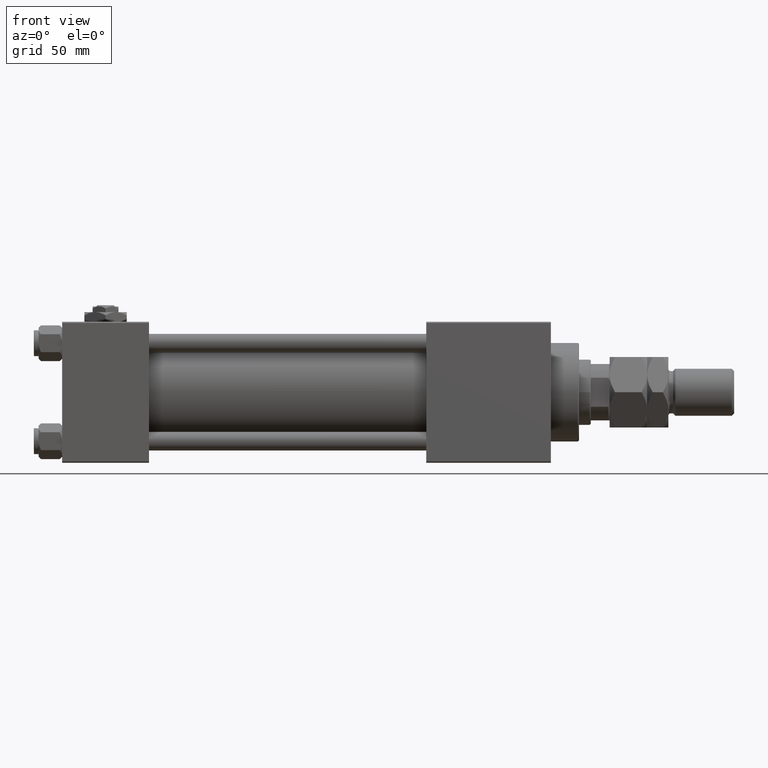
[diagram: clean part render]
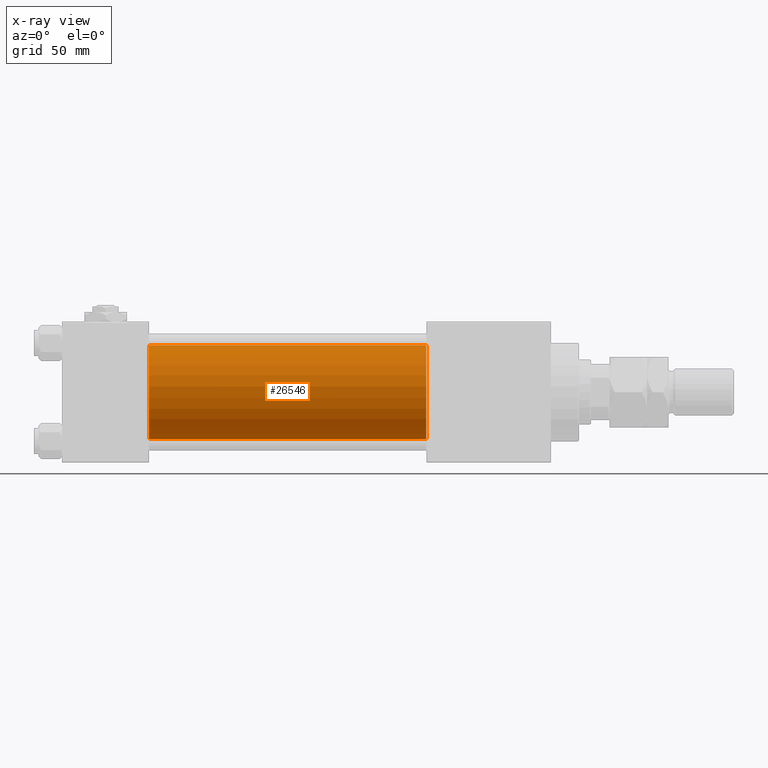
[diagram: x-ray — body ghosted, one internal face saturated and labeled with its STEP entity id]
A machine part, front view, then the same camera in x-ray: the body is ghosted and one INTERNAL B-rep face — a face not visible from any outside direction — is saturated and labeled: STEP entity #26546.
In plain terms, the highlighted cylindrical surface (partial cylindrical patch) has radius 20 mm, axis along (-1, -0, -0).
Its self-contained STEP definition (entity closure, byte-faithful):
#955 = ORIENTED_EDGE ( 'NONE', *, *, #35718, .F. ) ;
#1425 = VERTEX_POINT ( 'NONE', #25371 ) ;
#2601 = DIRECTION ( 'NONE',  ( 0.000000000000000000, 0.000000000000000000, -1.000000000000000000 ) ) ;
#2812 = LINE ( 'NONE', #40607, #18511 ) ;
#3264 = EDGE_CURVE ( 'NONE', #37006, #1425, #30908, .T. ) ;
#4727 = ORIENTED_EDGE ( 'NONE', *, *, #36873, .T. ) ;
#6833 = LINE ( 'NONE', #27505, #13494 ) ;
#7440 = AXIS2_PLACEMENT_3D ( 'NONE', #24615, #45581, #32777 ) ;
#8902 = CIRCLE ( 'NONE', #21089, 20.00000000000000000 ) ;
#9813 = CARTESIAN_POINT ( 'NONE',  ( 37.00000000000000000, -1.527916156705042519E-16, -20.00000000000000000 ) ) ;
#12726 = DIRECTION ( 'NONE',  ( -1.000000000000000000, -0.000000000000000000, -0.000000000000000000 ) ) ;
#13494 = VECTOR ( 'NONE', #32638, 1000.000000000000000 ) ;
#16112 = DIRECTION ( 'NONE',  ( -1.000000000000000000, -0.000000000000000000, -0.000000000000000000 ) ) ;
#18117 = DIRECTION ( 'NONE',  ( 1.000000000000000000, 0.000000000000000000, 0.000000000000000000 ) ) ;
#18511 = VECTOR ( 'NONE', #16112, 1000.000000000000000 ) ;
#21089 = AXIS2_PLACEMENT_3D ( 'NONE', #43438, #18117, #2601 ) ;
#23323 = VERTEX_POINT ( 'NONE', #9813 ) ;
#23973 = CARTESIAN_POINT ( 'NONE',  ( 37.00000000000000000, -2.602085213965210642E-15, 20.00000000000000000 ) ) ;
#24615 = CARTESIAN_POINT ( 'NONE',  ( 155.0000000000000000, -2.602085213965210642E-15, 0.000000000000000000 ) ) ;
#25371 = CARTESIAN_POINT ( 'NONE',  ( 155.0000000000000000, -1.527916156705042519E-16, -20.00000000000000000 ) ) ;
#26546 = ADVANCED_FACE ( 'NONE', ( #41833 ), #46461, .F. ) ;
#27505 = CARTESIAN_POINT ( 'NONE',  ( 155.0000000000000000, -2.602085213965210642E-15, 20.00000000000000000 ) ) ;
#30190 = VERTEX_POINT ( 'NONE', #23973 ) ;
#30908 = CIRCLE ( 'NONE', #7440, 20.00000000000000000 ) ;
#30909 = AXIS2_PLACEMENT_3D ( 'NONE', #42380, #12726, #37464 ) ;
#32638 = DIRECTION ( 'NONE',  ( -1.000000000000000000, -0.000000000000000000, -0.000000000000000000 ) ) ;
#32777 = DIRECTION ( 'NONE',  ( 0.000000000000000000, 0.000000000000000000, -1.000000000000000000 ) ) ;
#33229 = CARTESIAN_POINT ( 'NONE',  ( 155.0000000000000000, -2.602085213965210642E-15, 20.00000000000000000 ) ) ;
#35718 = EDGE_CURVE ( 'NONE', #30190, #23323, #8902, .T. ) ;
#36873 = EDGE_CURVE ( 'NONE', #1425, #23323, #2812, .T. ) ;
#37006 = VERTEX_POINT ( 'NONE', #33229 ) ;
#37464 = DIRECTION ( 'NONE',  ( 0.000000000000000000, 0.000000000000000000, 1.000000000000000000 ) ) ;
#39172 = ORIENTED_EDGE ( 'NONE', *, *, #3264, .T. ) ;
#40607 = CARTESIAN_POINT ( 'NONE',  ( 155.0000000000000000, -1.527916156705042519E-16, -20.00000000000000000 ) ) ;
#41833 = FACE_OUTER_BOUND ( 'NONE', #43435, .T. ) ;
#41872 = EDGE_CURVE ( 'NONE', #37006, #30190, #6833, .T. ) ;
#42380 = CARTESIAN_POINT ( 'NONE',  ( 155.0000000000000000, -2.602085213965210642E-15, 0.000000000000000000 ) ) ;
#43435 = EDGE_LOOP ( 'NONE', ( #39172, #4727, #955, #46730 ) ) ;
#43438 = CARTESIAN_POINT ( 'NONE',  ( 37.00000000000000000, -2.602085213965210642E-15, 0.000000000000000000 ) ) ;
#45581 = DIRECTION ( 'NONE',  ( 1.000000000000000000, 0.000000000000000000, 0.000000000000000000 ) ) ;
#46461 = CYLINDRICAL_SURFACE ( 'NONE', #30909, 20.00000000000000000 ) ;
#46730 = ORIENTED_EDGE ( 'NONE', *, *, #41872, .F. ) ;